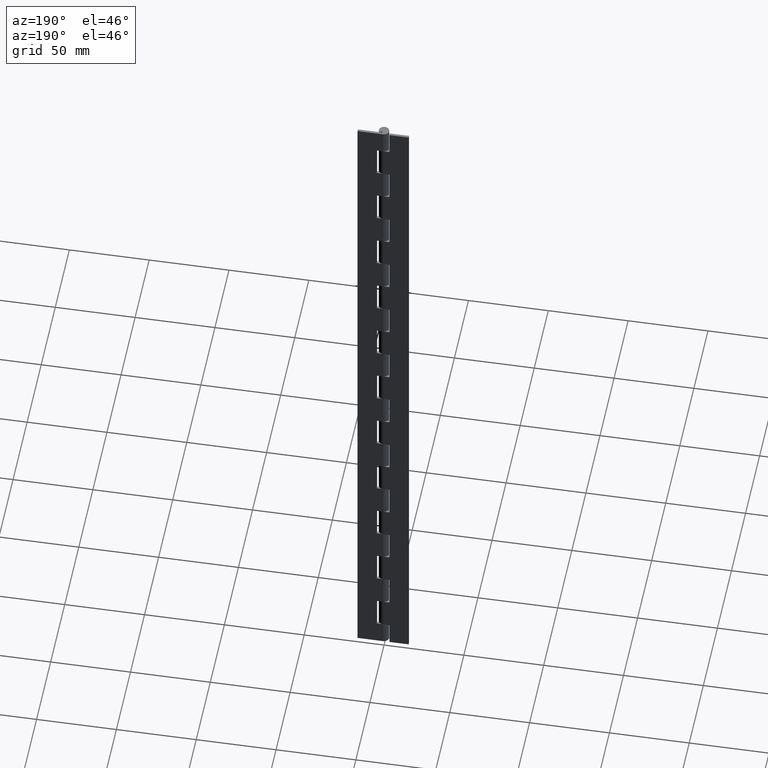
[diagram: clean part render]
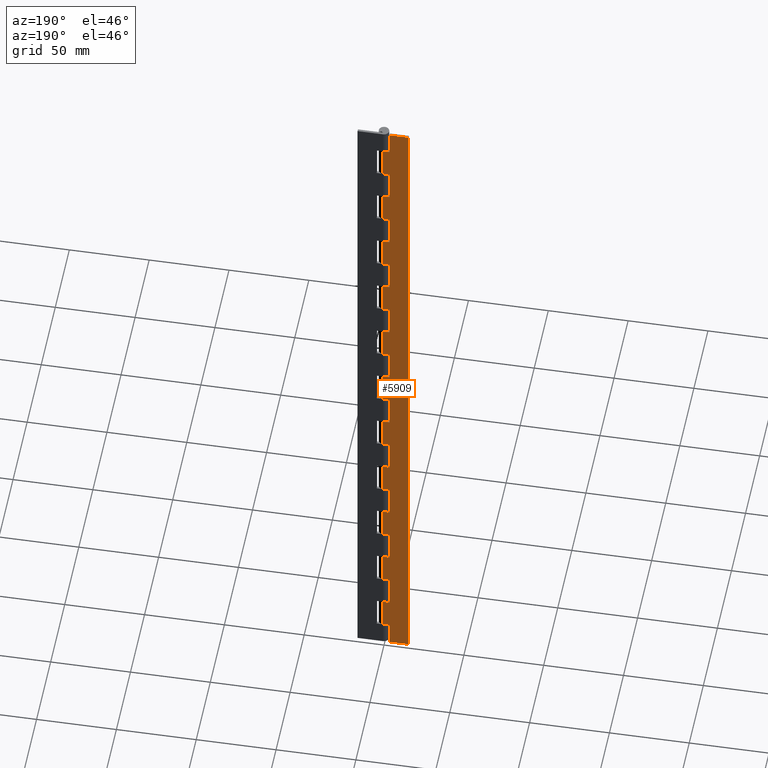
[diagram: same view with one face highlighted and labeled with its STEP entity id]
A machine part, auxiliary view. The second image highlights one B-rep face of the part: STEP entity #5909.
In plain terms, the highlighted face is a freeform B-spline surface patch.
Its self-contained STEP definition (entity closure, byte-faithful):
#3597=CARTESIAN_POINT('',(0.0,3.250000000000000,15.000022000000000));
#3598=VERTEX_POINT('',#3597);
#3655=CARTESIAN_POINT('',(-4.0,3.250000000000000,15.000022000000000));
#3656=VERTEX_POINT('',#3655);
#3662=CARTESIAN_POINT('',(-4.0,3.250000000000000,15.000022000000000));
#3663=CARTESIAN_POINT('',(0.0,3.250000000000000,15.000022000000000));
#3664=QUASI_UNIFORM_CURVE('',1,(#3662,#3663),.UNSPECIFIED.,.F.,.U.);
#3665=EDGE_CURVE('',#3656,#3598,#3664,.T.);
#3682=CARTESIAN_POINT('',(-4.0,3.250000000000000,0.0));
#3683=VERTEX_POINT('',#3682);
#3689=CARTESIAN_POINT('',(-4.0,3.250000000000000,0.0));
#3690=CARTESIAN_POINT('',(-4.0,3.250000000000000,15.000022000000000));
#3691=QUASI_UNIFORM_CURVE('',1,(#3689,#3690),.UNSPECIFIED.,.F.,.U.);
#3692=EDGE_CURVE('',#3683,#3656,#3691,.T.);
#3705=CARTESIAN_POINT('',(0.0,3.250000000000000,35.000021999999952));
#3706=VERTEX_POINT('',#3705);
#3726=CARTESIAN_POINT('',(-4.0,3.250000000000000,35.000021999999952));
#3727=VERTEX_POINT('',#3726);
#3728=CARTESIAN_POINT('',(0.0,3.250000000000000,35.000021999999952));
#3729=CARTESIAN_POINT('',(-4.0,3.250000000000000,35.000021999999952));
#3730=QUASI_UNIFORM_CURVE('',1,(#3728,#3729),.UNSPECIFIED.,.F.,.U.);
#3731=EDGE_CURVE('',#3706,#3727,#3730,.T.);
#3781=CARTESIAN_POINT('',(0.0,3.250000000000000,55.000022000000001));
#3782=VERTEX_POINT('',#3781);
#3839=CARTESIAN_POINT('',(-4.0,3.250000000000000,55.000022000000001));
#3840=VERTEX_POINT('',#3839);
#3846=CARTESIAN_POINT('',(-4.0,3.250000000000000,55.000022000000001));
#3847=CARTESIAN_POINT('',(0.0,3.250000000000000,55.000022000000001));
#3848=QUASI_UNIFORM_CURVE('',1,(#3846,#3847),.UNSPECIFIED.,.F.,.U.);
#3849=EDGE_CURVE('',#3840,#3782,#3848,.T.);
#3865=CARTESIAN_POINT('',(-4.0,3.250000000000000,35.000021999999952));
#3866=CARTESIAN_POINT('',(-4.0,3.250000000000000,55.000022000000001));
#3867=QUASI_UNIFORM_CURVE('',1,(#3865,#3866),.UNSPECIFIED.,.F.,.U.);
#3868=EDGE_CURVE('',#3727,#3840,#3867,.T.);
#3881=CARTESIAN_POINT('',(0.0,3.250000000000000,75.000022000000001));
#3882=VERTEX_POINT('',#3881);
#3902=CARTESIAN_POINT('',(-4.0,3.250000000000000,75.000022000000001));
#3903=VERTEX_POINT('',#3902);
#3904=CARTESIAN_POINT('',(0.0,3.250000000000000,75.000022000000001));
#3905=CARTESIAN_POINT('',(-4.0,3.250000000000000,75.000022000000001));
#3906=QUASI_UNIFORM_CURVE('',1,(#3904,#3905),.UNSPECIFIED.,.F.,.U.);
#3907=EDGE_CURVE('',#3882,#3903,#3906,.T.);
#3957=CARTESIAN_POINT('',(0.0,3.250000000000000,95.000022000000001));
#3958=VERTEX_POINT('',#3957);
#4015=CARTESIAN_POINT('',(-4.0,3.250000000000000,95.000022000000001));
#4016=VERTEX_POINT('',#4015);
#4022=CARTESIAN_POINT('',(-4.0,3.250000000000000,95.000022000000001));
#4023=CARTESIAN_POINT('',(0.0,3.250000000000000,95.000022000000001));
#4024=QUASI_UNIFORM_CURVE('',1,(#4022,#4023),.UNSPECIFIED.,.F.,.U.);
#4025=EDGE_CURVE('',#4016,#3958,#4024,.T.);
#4041=CARTESIAN_POINT('',(-4.0,3.250000000000000,75.000022000000001));
#4042=CARTESIAN_POINT('',(-4.0,3.250000000000000,95.000022000000001));
#4043=QUASI_UNIFORM_CURVE('',1,(#4041,#4042),.UNSPECIFIED.,.F.,.U.);
#4044=EDGE_CURVE('',#3903,#4016,#4043,.T.);
#4057=CARTESIAN_POINT('',(0.0,3.250000000000000,115.000022000000000));
#4058=VERTEX_POINT('',#4057);
#4078=CARTESIAN_POINT('',(-4.0,3.250000000000000,115.000022000000000));
#4079=VERTEX_POINT('',#4078);
#4080=CARTESIAN_POINT('',(0.0,3.250000000000000,115.000022000000000));
#4081=CARTESIAN_POINT('',(-4.0,3.250000000000000,115.000022000000000));
#4082=QUASI_UNIFORM_CURVE('',1,(#4080,#4081),.UNSPECIFIED.,.F.,.U.);
#4083=EDGE_CURVE('',#4058,#4079,#4082,.T.);
#4133=CARTESIAN_POINT('',(0.0,3.250000000000000,135.000022000000000));
#4134=VERTEX_POINT('',#4133);
#4191=CARTESIAN_POINT('',(-4.0,3.250000000000000,135.000022000000000));
#4192=VERTEX_POINT('',#4191);
#4198=CARTESIAN_POINT('',(-4.0,3.250000000000000,135.000022000000000));
#4199=CARTESIAN_POINT('',(0.0,3.250000000000000,135.000022000000000));
#4200=QUASI_UNIFORM_CURVE('',1,(#4198,#4199),.UNSPECIFIED.,.F.,.U.);
#4201=EDGE_CURVE('',#4192,#4134,#4200,.T.);
#4217=CARTESIAN_POINT('',(-4.0,3.250000000000000,115.000022000000000));
#4218=CARTESIAN_POINT('',(-4.0,3.250000000000000,135.000022000000000));
#4219=QUASI_UNIFORM_CURVE('',1,(#4217,#4218),.UNSPECIFIED.,.F.,.U.);
#4220=EDGE_CURVE('',#4079,#4192,#4219,.T.);
#4233=CARTESIAN_POINT('',(0.0,3.250000000000000,155.000022000000000));
#4234=VERTEX_POINT('',#4233);
#4254=CARTESIAN_POINT('',(-4.0,3.250000000000000,155.000022000000000));
#4255=VERTEX_POINT('',#4254);
#4256=CARTESIAN_POINT('',(0.0,3.250000000000000,155.000022000000000));
#4257=CARTESIAN_POINT('',(-4.0,3.250000000000000,155.000022000000000));
#4258=QUASI_UNIFORM_CURVE('',1,(#4256,#4257),.UNSPECIFIED.,.F.,.U.);
#4259=EDGE_CURVE('',#4234,#4255,#4258,.T.);
#4309=CARTESIAN_POINT('',(0.0,3.250000000000000,175.000022000000000));
#4310=VERTEX_POINT('',#4309);
#4367=CARTESIAN_POINT('',(-4.0,3.250000000000000,175.000022000000000));
#4368=VERTEX_POINT('',#4367);
#4374=CARTESIAN_POINT('',(-4.0,3.250000000000000,175.000022000000000));
#4375=CARTESIAN_POINT('',(0.0,3.250000000000000,175.000022000000000));
#4376=QUASI_UNIFORM_CURVE('',1,(#4374,#4375),.UNSPECIFIED.,.F.,.U.);
#4377=EDGE_CURVE('',#4368,#4310,#4376,.T.);
#4393=CARTESIAN_POINT('',(-4.0,3.250000000000000,155.000022000000000));
#4394=CARTESIAN_POINT('',(-4.0,3.250000000000000,175.000022000000000));
#4395=QUASI_UNIFORM_CURVE('',1,(#4393,#4394),.UNSPECIFIED.,.F.,.U.);
#4396=EDGE_CURVE('',#4255,#4368,#4395,.T.);
#4409=CARTESIAN_POINT('',(0.0,3.250000000000000,195.000022000000000));
#4410=VERTEX_POINT('',#4409);
#4430=CARTESIAN_POINT('',(-4.0,3.250000000000000,195.000022000000000));
#4431=VERTEX_POINT('',#4430);
#4432=CARTESIAN_POINT('',(0.0,3.250000000000000,195.000022000000000));
#4433=CARTESIAN_POINT('',(-4.0,3.250000000000000,195.000022000000000));
#4434=QUASI_UNIFORM_CURVE('',1,(#4432,#4433),.UNSPECIFIED.,.F.,.U.);
#4435=EDGE_CURVE('',#4410,#4431,#4434,.T.);
#4485=CARTESIAN_POINT('',(0.0,3.250000000000000,215.000022000000000));
#4486=VERTEX_POINT('',#4485);
#4543=CARTESIAN_POINT('',(-4.0,3.250000000000000,215.000022000000000));
#4544=VERTEX_POINT('',#4543);
#4550=CARTESIAN_POINT('',(-4.0,3.250000000000000,215.000022000000000));
#4551=CARTESIAN_POINT('',(0.0,3.250000000000000,215.000022000000000));
#4552=QUASI_UNIFORM_CURVE('',1,(#4550,#4551),.UNSPECIFIED.,.F.,.U.);
#4553=EDGE_CURVE('',#4544,#4486,#4552,.T.);
#4569=CARTESIAN_POINT('',(-4.0,3.250000000000000,195.000022000000000));
#4570=CARTESIAN_POINT('',(-4.0,3.250000000000000,215.000022000000000));
#4571=QUASI_UNIFORM_CURVE('',1,(#4569,#4570),.UNSPECIFIED.,.F.,.U.);
#4572=EDGE_CURVE('',#4431,#4544,#4571,.T.);
#4585=CARTESIAN_POINT('',(0.0,3.250000000000000,235.000022000000000));
#4586=VERTEX_POINT('',#4585);
#4606=CARTESIAN_POINT('',(-4.0,3.250000000000000,235.000022000000000));
#4607=VERTEX_POINT('',#4606);
#4608=CARTESIAN_POINT('',(0.0,3.250000000000000,235.000022000000000));
#4609=CARTESIAN_POINT('',(-4.0,3.250000000000000,235.000022000000000));
#4610=QUASI_UNIFORM_CURVE('',1,(#4608,#4609),.UNSPECIFIED.,.F.,.U.);
#4611=EDGE_CURVE('',#4586,#4607,#4610,.T.);
#4661=CARTESIAN_POINT('',(0.0,3.250000000000000,255.000022000000000));
#4662=VERTEX_POINT('',#4661);
#4719=CARTESIAN_POINT('',(-4.0,3.250000000000000,255.000022000000000));
#4720=VERTEX_POINT('',#4719);
#4726=CARTESIAN_POINT('',(-4.0,3.250000000000000,255.000022000000000));
#4727=CARTESIAN_POINT('',(0.0,3.250000000000000,255.000022000000000));
#4728=QUASI_UNIFORM_CURVE('',1,(#4726,#4727),.UNSPECIFIED.,.F.,.U.);
#4729=EDGE_CURVE('',#4720,#4662,#4728,.T.);
#4745=CARTESIAN_POINT('',(-4.0,3.250000000000000,235.000022000000000));
#4746=CARTESIAN_POINT('',(-4.0,3.250000000000000,255.000022000000000));
#4747=QUASI_UNIFORM_CURVE('',1,(#4745,#4746),.UNSPECIFIED.,.F.,.U.);
#4748=EDGE_CURVE('',#4607,#4720,#4747,.T.);
#4761=CARTESIAN_POINT('',(0.0,3.250000000000000,275.000022000000000));
#4762=VERTEX_POINT('',#4761);
#4782=CARTESIAN_POINT('',(-4.0,3.250000000000000,275.000022000000000));
#4783=VERTEX_POINT('',#4782);
#4784=CARTESIAN_POINT('',(0.0,3.250000000000000,275.000022000000000));
#4785=CARTESIAN_POINT('',(-4.0,3.250000000000000,275.000022000000000));
#4786=QUASI_UNIFORM_CURVE('',1,(#4784,#4785),.UNSPECIFIED.,.F.,.U.);
#4787=EDGE_CURVE('',#4762,#4783,#4786,.T.);
#4837=CARTESIAN_POINT('',(0.0,3.250000000000000,295.000021999999890));
#4838=VERTEX_POINT('',#4837);
#4895=CARTESIAN_POINT('',(-4.0,3.250000000000000,295.000021999999890));
#4896=VERTEX_POINT('',#4895);
#4902=CARTESIAN_POINT('',(-4.0,3.250000000000000,295.000021999999890));
#4903=CARTESIAN_POINT('',(0.0,3.250000000000000,295.000021999999890));
#4904=QUASI_UNIFORM_CURVE('',1,(#4902,#4903),.UNSPECIFIED.,.F.,.U.);
#4905=EDGE_CURVE('',#4896,#4838,#4904,.T.);
#4921=CARTESIAN_POINT('',(-4.0,3.250000000000000,275.000022000000000));
#4922=CARTESIAN_POINT('',(-4.0,3.250000000000000,295.000021999999890));
#4923=QUASI_UNIFORM_CURVE('',1,(#4921,#4922),.UNSPECIFIED.,.F.,.U.);
#4924=EDGE_CURVE('',#4783,#4896,#4923,.T.);
#4937=CARTESIAN_POINT('',(0.0,3.250000000000000,315.000022000000000));
#4938=VERTEX_POINT('',#4937);
#4958=CARTESIAN_POINT('',(-4.0,3.250000000000000,315.000022000000000));
#4959=VERTEX_POINT('',#4958);
#4960=CARTESIAN_POINT('',(0.0,3.250000000000000,315.000022000000000));
#4961=CARTESIAN_POINT('',(-4.0,3.250000000000000,315.000022000000000));
#4962=QUASI_UNIFORM_CURVE('',1,(#4960,#4961),.UNSPECIFIED.,.F.,.U.);
#4963=EDGE_CURVE('',#4938,#4959,#4962,.T.);
#5013=CARTESIAN_POINT('',(0.0,3.250000000000000,335.000022000000000));
#5014=VERTEX_POINT('',#5013);
#5071=CARTESIAN_POINT('',(-4.0,3.250000000000000,335.000022000000000));
#5072=VERTEX_POINT('',#5071);
#5078=CARTESIAN_POINT('',(-4.0,3.250000000000000,335.000022000000000));
#5079=CARTESIAN_POINT('',(0.0,3.250000000000000,335.000022000000000));
#5080=QUASI_UNIFORM_CURVE('',1,(#5078,#5079),.UNSPECIFIED.,.F.,.U.);
#5081=EDGE_CURVE('',#5072,#5014,#5080,.T.);
#5097=CARTESIAN_POINT('',(-4.0,3.250000000000000,315.000022000000000));
#5098=CARTESIAN_POINT('',(-4.0,3.250000000000000,335.000022000000000));
#5099=QUASI_UNIFORM_CURVE('',1,(#5097,#5098),.UNSPECIFIED.,.F.,.U.);
#5100=EDGE_CURVE('',#4959,#5072,#5099,.T.);
#5113=CARTESIAN_POINT('',(0.0,3.250000000000000,355.000022000000000));
#5114=VERTEX_POINT('',#5113);
#5134=CARTESIAN_POINT('',(-4.0,3.250000000000000,355.000022000000000));
#5135=VERTEX_POINT('',#5134);
#5136=CARTESIAN_POINT('',(0.0,3.250000000000000,355.000022000000000));
#5137=CARTESIAN_POINT('',(-4.0,3.250000000000000,355.000022000000000));
#5138=QUASI_UNIFORM_CURVE('',1,(#5136,#5137),.UNSPECIFIED.,.F.,.U.);
#5139=EDGE_CURVE('',#5114,#5135,#5138,.T.);
#5189=CARTESIAN_POINT('',(0.0,3.250000000000000,375.000022000000000));
#5190=VERTEX_POINT('',#5189);
#5247=CARTESIAN_POINT('',(-4.0,3.250000000000000,375.000022000000000));
#5248=VERTEX_POINT('',#5247);
#5254=CARTESIAN_POINT('',(-4.0,3.250000000000000,375.000022000000000));
#5255=CARTESIAN_POINT('',(0.0,3.250000000000000,375.000022000000000));
#5256=QUASI_UNIFORM_CURVE('',1,(#5254,#5255),.UNSPECIFIED.,.F.,.U.);
#5257=EDGE_CURVE('',#5248,#5190,#5256,.T.);
#5273=CARTESIAN_POINT('',(-4.0,3.250000000000000,355.000022000000000));
#5274=CARTESIAN_POINT('',(-4.0,3.250000000000000,375.000022000000000));
#5275=QUASI_UNIFORM_CURVE('',1,(#5273,#5274),.UNSPECIFIED.,.F.,.U.);
#5276=EDGE_CURVE('',#5135,#5248,#5275,.T.);
#5289=CARTESIAN_POINT('',(0.0,3.250000000000000,395.000022000000000));
#5290=VERTEX_POINT('',#5289);
#5310=CARTESIAN_POINT('',(-4.0,3.250000000000000,395.000022000000000));
#5311=VERTEX_POINT('',#5310);
#5312=CARTESIAN_POINT('',(0.0,3.250000000000000,395.000022000000000));
#5313=CARTESIAN_POINT('',(-4.0,3.250000000000000,395.000022000000000));
#5314=QUASI_UNIFORM_CURVE('',1,(#5312,#5313),.UNSPECIFIED.,.F.,.U.);
#5315=EDGE_CURVE('',#5290,#5311,#5314,.T.);
#5365=CARTESIAN_POINT('',(0.0,3.250000000000000,415.000022000000000));
#5366=VERTEX_POINT('',#5365);
#5423=CARTESIAN_POINT('',(-4.0,3.250000000000000,415.000022000000000));
#5424=VERTEX_POINT('',#5423);
#5430=CARTESIAN_POINT('',(-4.0,3.250000000000000,415.000022000000000));
#5431=CARTESIAN_POINT('',(0.0,3.250000000000000,415.000022000000000));
#5432=QUASI_UNIFORM_CURVE('',1,(#5430,#5431),.UNSPECIFIED.,.F.,.U.);
#5433=EDGE_CURVE('',#5424,#5366,#5432,.T.);
#5449=CARTESIAN_POINT('',(-4.0,3.250000000000000,395.000022000000000));
#5450=CARTESIAN_POINT('',(-4.0,3.250000000000000,415.000022000000000));
#5451=QUASI_UNIFORM_CURVE('',1,(#5449,#5450),.UNSPECIFIED.,.F.,.U.);
#5452=EDGE_CURVE('',#5311,#5424,#5451,.T.);
#5465=CARTESIAN_POINT('',(0.0,3.250000000000000,435.000022000000000));
#5466=VERTEX_POINT('',#5465);
#5486=CARTESIAN_POINT('',(-4.0,3.250000000000000,435.000022000000000));
#5487=VERTEX_POINT('',#5486);
#5488=CARTESIAN_POINT('',(0.0,3.250000000000000,435.000022000000000));
#5489=CARTESIAN_POINT('',(-4.0,3.250000000000000,435.000022000000000));
#5490=QUASI_UNIFORM_CURVE('',1,(#5488,#5489),.UNSPECIFIED.,.F.,.U.);
#5491=EDGE_CURVE('',#5466,#5487,#5490,.T.);
#5549=CARTESIAN_POINT('',(-4.0,3.250000000000000,450.000022000000000));
#5550=VERTEX_POINT('',#5549);
#5551=CARTESIAN_POINT('',(-4.0,3.250000000000000,435.000022000000000));
#5552=CARTESIAN_POINT('',(-4.0,3.250000000000000,450.000022000000000));
#5553=QUASI_UNIFORM_CURVE('',1,(#5551,#5552),.UNSPECIFIED.,.F.,.U.);
#5554=EDGE_CURVE('',#5487,#5550,#5553,.T.);
#5577=CARTESIAN_POINT('',(-16.0,3.250000000000000,0.0));
#5578=VERTEX_POINT('',#5577);
#5584=CARTESIAN_POINT('',(-16.0,3.250000000000000,0.0));
#5585=CARTESIAN_POINT('',(-4.0,3.250000000000000,0.0));
#5586=QUASI_UNIFORM_CURVE('',1,(#5584,#5585),.UNSPECIFIED.,.F.,.U.);
#5587=EDGE_CURVE('',#5578,#3683,#5586,.T.);
#5605=CARTESIAN_POINT('',(-16.0,3.250000000000000,450.000022000000000));
#5606=VERTEX_POINT('',#5605);
#5607=CARTESIAN_POINT('',(-16.0,3.250000000000000,450.000022000000000));
#5608=CARTESIAN_POINT('',(-4.0,3.250000000000000,450.000022000000000));
#5609=QUASI_UNIFORM_CURVE('',1,(#5607,#5608),.UNSPECIFIED.,.F.,.U.);
#5610=EDGE_CURVE('',#5606,#5550,#5609,.T.);
#5801=CARTESIAN_POINT('',(0.0,3.250000000000000,435.000022000000000));
#5802=CARTESIAN_POINT('',(0.0,3.250000000000000,415.000022000000000));
#5803=QUASI_UNIFORM_CURVE('',1,(#5801,#5802),.UNSPECIFIED.,.F.,.U.);
#5804=EDGE_CURVE('',#5466,#5366,#5803,.T.);
#5810=CARTESIAN_POINT('',(-16.799199968988891,3.250000000000000,-22.477500226712660));
#5811=CARTESIAN_POINT('',(-16.799199968988891,3.250000000000000,472.477534296653910));
#5812=CARTESIAN_POINT('',(0.799200398142338,3.250000000000000,-22.477500226712660));
#5813=CARTESIAN_POINT('',(0.799200398142338,3.250000000000000,472.477534296653910));
#5814=B_SPLINE_SURFACE_WITH_KNOTS('',1,1,((#5810,#5812),(#5811,#5813)),.UNSPECIFIED.,.F.,.F.,.U.,(2,2),(2,2),(0.0,494.955034523366520),(0.0,17.598400367131230),.UNSPECIFIED.);
#5815=ORIENTED_EDGE('',*,*,#3692,.F.);
#5816=ORIENTED_EDGE('',*,*,#5587,.F.);
#5817=CARTESIAN_POINT('',(-16.0,3.250000000000000,450.000022000000000));
#5818=CARTESIAN_POINT('',(-16.0,3.250000000000000,0.0));
#5819=QUASI_UNIFORM_CURVE('',1,(#5817,#5818),.UNSPECIFIED.,.F.,.U.);
#5820=EDGE_CURVE('',#5606,#5578,#5819,.T.);
#5821=ORIENTED_EDGE('',*,*,#5820,.F.);
#5822=ORIENTED_EDGE('',*,*,#5610,.T.);
#5823=ORIENTED_EDGE('',*,*,#5554,.F.);
#5824=ORIENTED_EDGE('',*,*,#5491,.F.);
#5825=ORIENTED_EDGE('',*,*,#5804,.T.);
#5826=ORIENTED_EDGE('',*,*,#5433,.F.);
#5827=ORIENTED_EDGE('',*,*,#5452,.F.);
#5828=ORIENTED_EDGE('',*,*,#5315,.F.);
#5829=CARTESIAN_POINT('',(0.0,3.250000000000000,395.000022000000000));
#5830=CARTESIAN_POINT('',(0.0,3.250000000000000,375.000022000000000));
#5831=QUASI_UNIFORM_CURVE('',1,(#5829,#5830),.UNSPECIFIED.,.F.,.U.);
#5832=EDGE_CURVE('',#5290,#5190,#5831,.T.);
#5833=ORIENTED_EDGE('',*,*,#5832,.T.);
#5834=ORIENTED_EDGE('',*,*,#5257,.F.);
#5835=ORIENTED_EDGE('',*,*,#5276,.F.);
#5836=ORIENTED_EDGE('',*,*,#5139,.F.);
#5837=CARTESIAN_POINT('',(0.0,3.250000000000000,355.000022000000000));
#5838=CARTESIAN_POINT('',(0.0,3.250000000000000,335.000022000000000));
#5839=QUASI_UNIFORM_CURVE('',1,(#5837,#5838),.UNSPECIFIED.,.F.,.U.);
#5840=EDGE_CURVE('',#5114,#5014,#5839,.T.);
#5841=ORIENTED_EDGE('',*,*,#5840,.T.);
#5842=ORIENTED_EDGE('',*,*,#5081,.F.);
#5843=ORIENTED_EDGE('',*,*,#5100,.F.);
#5844=ORIENTED_EDGE('',*,*,#4963,.F.);
#5845=CARTESIAN_POINT('',(0.0,3.250000000000000,315.000022000000000));
#5846=CARTESIAN_POINT('',(0.0,3.250000000000000,295.000021999999890));
#5847=QUASI_UNIFORM_CURVE('',1,(#5845,#5846),.UNSPECIFIED.,.F.,.U.);
#5848=EDGE_CURVE('',#4938,#4838,#5847,.T.);
#5849=ORIENTED_EDGE('',*,*,#5848,.T.);
#5850=ORIENTED_EDGE('',*,*,#4905,.F.);
#5851=ORIENTED_EDGE('',*,*,#4924,.F.);
#5852=ORIENTED_EDGE('',*,*,#4787,.F.);
#5853=CARTESIAN_POINT('',(0.0,3.250000000000000,275.000022000000000));
#5854=CARTESIAN_POINT('',(0.0,3.250000000000000,255.000022000000000));
#5855=QUASI_UNIFORM_CURVE('',1,(#5853,#5854),.UNSPECIFIED.,.F.,.U.);
#5856=EDGE_CURVE('',#4762,#4662,#5855,.T.);
#5857=ORIENTED_EDGE('',*,*,#5856,.T.);
#5858=ORIENTED_EDGE('',*,*,#4729,.F.);
#5859=ORIENTED_EDGE('',*,*,#4748,.F.);
#5860=ORIENTED_EDGE('',*,*,#4611,.F.);
#5861=CARTESIAN_POINT('',(0.0,3.250000000000000,235.000022000000000));
#5862=CARTESIAN_POINT('',(0.0,3.250000000000000,215.000022000000000));
#5863=QUASI_UNIFORM_CURVE('',1,(#5861,#5862),.UNSPECIFIED.,.F.,.U.);
#5864=EDGE_CURVE('',#4586,#4486,#5863,.T.);
#5865=ORIENTED_EDGE('',*,*,#5864,.T.);
#5866=ORIENTED_EDGE('',*,*,#4553,.F.);
#5867=ORIENTED_EDGE('',*,*,#4572,.F.);
#5868=ORIENTED_EDGE('',*,*,#4435,.F.);
#5869=CARTESIAN_POINT('',(0.0,3.250000000000000,195.000022000000000));
#5870=CARTESIAN_POINT('',(0.0,3.250000000000000,175.000022000000000));
#5871=QUASI_UNIFORM_CURVE('',1,(#5869,#5870),.UNSPECIFIED.,.F.,.U.);
#5872=EDGE_CURVE('',#4410,#4310,#5871,.T.);
#5873=ORIENTED_EDGE('',*,*,#5872,.T.);
#5874=ORIENTED_EDGE('',*,*,#4377,.F.);
#5875=ORIENTED_EDGE('',*,*,#4396,.F.);
#5876=ORIENTED_EDGE('',*,*,#4259,.F.);
#5877=CARTESIAN_POINT('',(0.0,3.250000000000000,155.000022000000000));
#5878=CARTESIAN_POINT('',(0.0,3.250000000000000,135.000022000000000));
#5879=QUASI_UNIFORM_CURVE('',1,(#5877,#5878),.UNSPECIFIED.,.F.,.U.);
#5880=EDGE_CURVE('',#4234,#4134,#5879,.T.);
#5881=ORIENTED_EDGE('',*,*,#5880,.T.);
#5882=ORIENTED_EDGE('',*,*,#4201,.F.);
#5883=ORIENTED_EDGE('',*,*,#4220,.F.);
#5884=ORIENTED_EDGE('',*,*,#4083,.F.);
#5885=CARTESIAN_POINT('',(0.0,3.250000000000000,115.000022000000000));
#5886=CARTESIAN_POINT('',(0.0,3.250000000000000,95.000022000000001));
#5887=QUASI_UNIFORM_CURVE('',1,(#5885,#5886),.UNSPECIFIED.,.F.,.U.);
#5888=EDGE_CURVE('',#4058,#3958,#5887,.T.);
#5889=ORIENTED_EDGE('',*,*,#5888,.T.);
#5890=ORIENTED_EDGE('',*,*,#4025,.F.);
#5891=ORIENTED_EDGE('',*,*,#4044,.F.);
#5892=ORIENTED_EDGE('',*,*,#3907,.F.);
#5893=CARTESIAN_POINT('',(0.0,3.250000000000000,75.000022000000001));
#5894=CARTESIAN_POINT('',(0.0,3.250000000000000,55.000022000000001));
#5895=QUASI_UNIFORM_CURVE('',1,(#5893,#5894),.UNSPECIFIED.,.F.,.U.);
#5896=EDGE_CURVE('',#3882,#3782,#5895,.T.);
#5897=ORIENTED_EDGE('',*,*,#5896,.T.);
#5898=ORIENTED_EDGE('',*,*,#3849,.F.);
#5899=ORIENTED_EDGE('',*,*,#3868,.F.);
#5900=ORIENTED_EDGE('',*,*,#3731,.F.);
#5901=CARTESIAN_POINT('',(0.0,3.250000000000000,35.000021999999952));
#5902=CARTESIAN_POINT('',(0.0,3.250000000000000,15.000022000000000));
#5903=QUASI_UNIFORM_CURVE('',1,(#5901,#5902),.UNSPECIFIED.,.F.,.U.);
#5904=EDGE_CURVE('',#3706,#3598,#5903,.T.);
#5905=ORIENTED_EDGE('',*,*,#5904,.T.);
#5906=ORIENTED_EDGE('',*,*,#3665,.F.);
#5907=EDGE_LOOP('',(#5815,#5816,#5821,#5822,#5823,#5824,#5825,#5826,#5827,#5828,#5833,#5834,#5835,#5836,#5841,#5842,#5843,#5844,#5849,#5850,#5851,#5852,#5857,#5858,#5859,#5860,#5865,#5866,#5867,#5868,#5873,#5874,#5875,#5876,#5881,#5882,#5883,#5884,#5889,#5890,#5891,#5892,#5897,#5898,#5899,#5900,#5905,#5906));
#5908=FACE_OUTER_BOUND('',#5907,.T.);
#5909=ADVANCED_FACE('',(#5908),#5814,.T.);